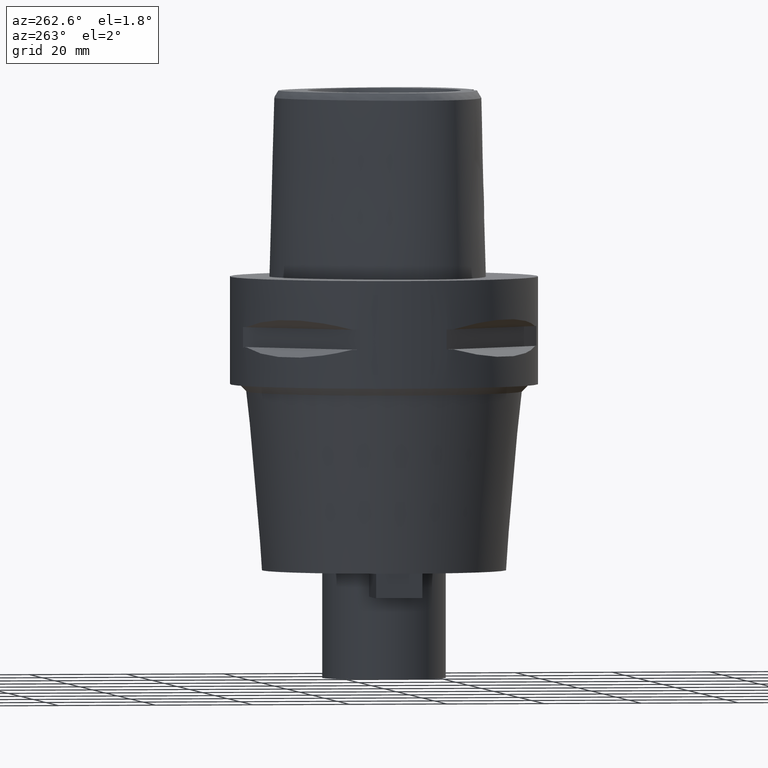
[diagram: clean part render]
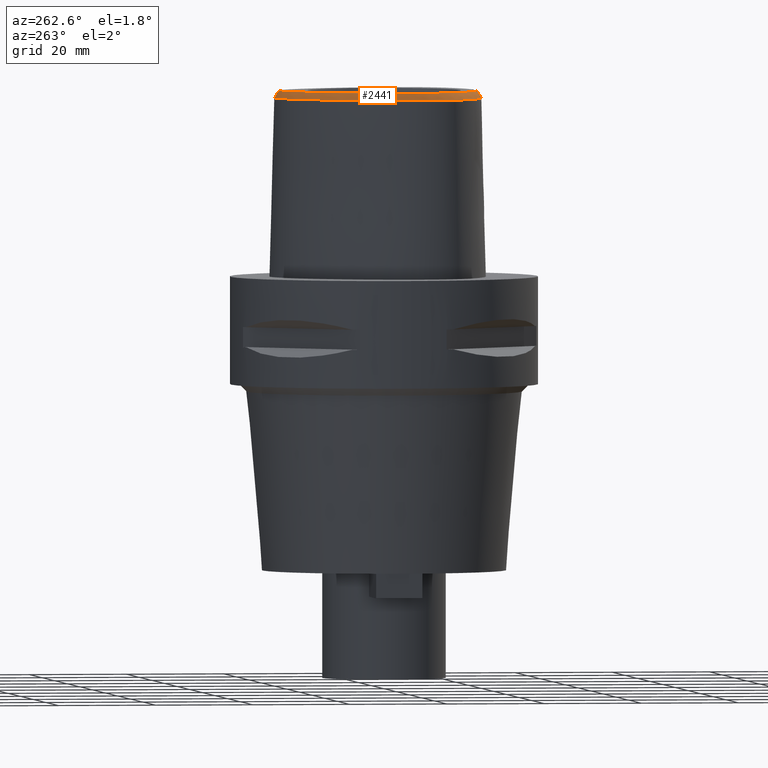
[diagram: same view with one face highlighted and labeled with its STEP entity id]
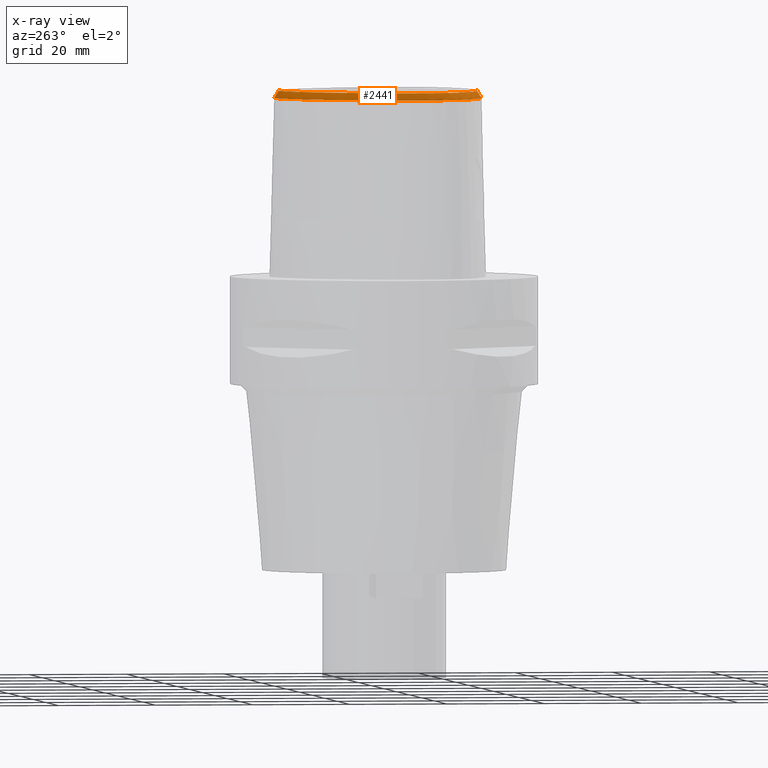
[diagram: x-ray of the same camera — body ghosted, the highlighted face saturated]
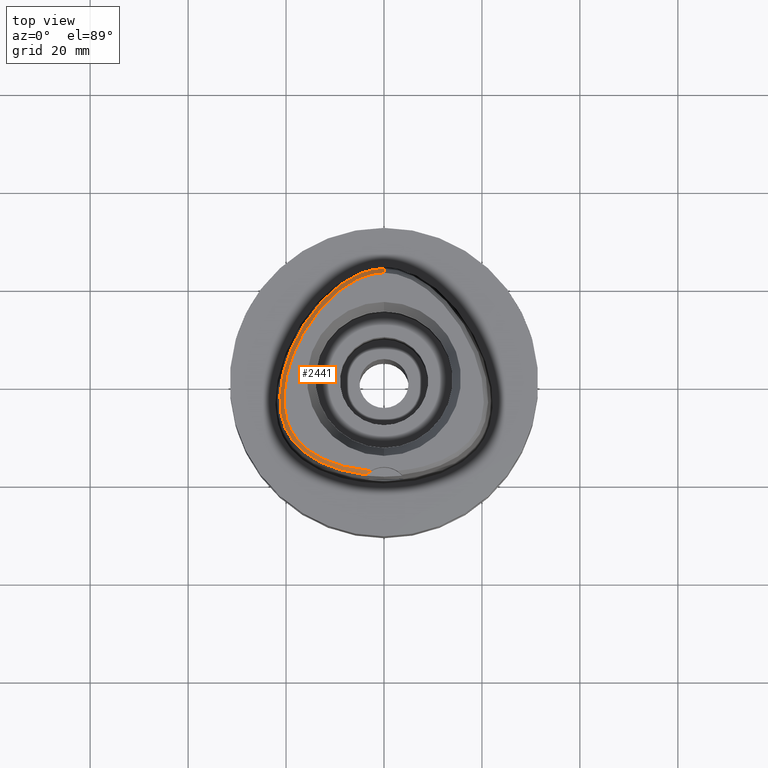
[diagram: same view with one face highlighted and labeled with its STEP entity id]
A machine part, auxiliary view. The second image highlights one B-rep face of the part: STEP entity #2441.
The next image is the same camera in x-ray: the body ghosted, the highlighted face saturated — about 0% of this face is hidden behind the body in this view.
A second angle (top view) of the same face is appended — the face is thin or edge-on in the first view.
In plain terms, the highlighted face is a freeform B-spline surface patch.
Its self-contained STEP definition (entity closure, byte-faithful):
#34=CARTESIAN_POINT('',(-2.682279906005E0,-1.878035848610E1,3.8E1));
#35=CARTESIAN_POINT('',(-3.536583919332E0,-1.871198367295E1,3.8E1));
#36=CARTESIAN_POINT('',(-5.157569823313E0,-1.851707777855E1,3.8E1));
#37=CARTESIAN_POINT('',(-7.379922309266E0,-1.807701230627E1,3.8E1));
#38=CARTESIAN_POINT('',(-9.244743325410E0,-1.756414297180E1,3.8E1));
#39=CARTESIAN_POINT('',(-1.088082047077E1,-1.699291122827E1,3.8E1));
#40=CARTESIAN_POINT('',(-1.236357253434E1,-1.635519436573E1,3.8E1));
#41=CARTESIAN_POINT('',(-1.371376347293E1,-1.565206771696E1,3.8E1));
#42=CARTESIAN_POINT('',(-1.494793850208E1,-1.487894856490E1,3.8E1));
#43=CARTESIAN_POINT('',(-1.605667878127E1,-1.404125445998E1,3.8E1));
#44=CARTESIAN_POINT('',(-1.700225685115E1,-1.317719436755E1,3.8E1));
#45=CARTESIAN_POINT('',(-1.779417715049E1,-1.230019610942E1,3.8E1));
#46=CARTESIAN_POINT('',(-1.844725209020E1,-1.141643366579E1,3.8E1));
#47=CARTESIAN_POINT('',(-1.898422440909E1,-1.051398415405E1,3.8E1));
#48=CARTESIAN_POINT('',(-1.944073234022E1,-9.536082210321E0,3.8E1));
#49=CARTESIAN_POINT('',(-1.982568451380E1,-8.441682967328E0,3.8E1));
#50=CARTESIAN_POINT('',(-2.012494622432E1,-7.229445552468E0,3.8E1));
#51=CARTESIAN_POINT('',(-2.032744519445E1,-5.866086734526E0,3.8E1));
#52=CARTESIAN_POINT('',(-2.040991552703E1,-4.420594201927E0,3.8E1));
#53=CARTESIAN_POINT('',(-2.037387644774E1,-2.923694312187E0,3.8E1));
#54=CARTESIAN_POINT('',(-2.021713479060E1,-1.344726897676E0,3.8E1));
#55=CARTESIAN_POINT('',(-1.993042909867E1,3.267241519360E-1,3.8E1));
#56=CARTESIAN_POINT('',(-1.948811271935E1,2.148543156940E0,3.8E1));
#57=CARTESIAN_POINT('',(-1.883346068326E1,4.204975463693E0,3.8E1));
#58=CARTESIAN_POINT('',(-1.791222891773E1,6.481113687331E0,3.8E1));
#59=CARTESIAN_POINT('',(-1.678598507471E1,8.743789361891E0,3.8E1));
#60=CARTESIAN_POINT('',(-1.548556504651E1,1.092903336665E1,3.8E1));
#61=CARTESIAN_POINT('',(-1.403416607952E1,1.299368338912E1,3.8E1));
#62=CARTESIAN_POINT('',(-1.252298261168E1,1.482314236452E1,3.8E1));
#63=CARTESIAN_POINT('',(-1.110128863395E1,1.630385497934E1,3.8E1));
#64=CARTESIAN_POINT('',(-9.770444384936E0,1.751155273817E1,3.8E1));
#65=CARTESIAN_POINT('',(-8.476461198326E0,1.853286527510E1,3.8E1));
#66=CARTESIAN_POINT('',(-7.192157802658E0,1.940424102648E1,3.8E1));
#67=CARTESIAN_POINT('',(-5.904116937329E0,2.013985433437E1,3.8E1));
#68=CARTESIAN_POINT('',(-4.618287667118E0,2.073660556736E1,3.8E1));
#69=CARTESIAN_POINT('',(-3.367812084204E0,2.118315272942E1,3.8E1));
#70=CARTESIAN_POINT('',(-2.187686313881E0,2.148140095791E1,3.8E1));
#71=CARTESIAN_POINT('',(-1.072731769579E0,2.165074140493E1,3.8E1));
#72=CARTESIAN_POINT('',(-3.525911372496E-1,2.168728795389E1,3.8E1));
#73=CARTESIAN_POINT('',(-3.470663397163E-11,2.168728795390E1,3.8E1));
#191=CARTESIAN_POINT('',(-2.682279906005E0,-1.878035848610E1,3.8E1));
#192=CARTESIAN_POINT('',(-2.798094769254E0,-1.885397798185E1,3.786037908949E1));
#193=CARTESIAN_POINT('',(-3.023539852519E0,-1.901071116962E1,3.756412794551E1));
#194=CARTESIAN_POINT('',(-3.341069052948E0,-1.927246970200E1,3.707333940333E1));
#195=CARTESIAN_POINT('',(-3.541216570951E0,-1.946735519136E1,3.671114030568E1));
#196=CARTESIAN_POINT('',(-3.637738201364E0,-1.956971413237E1,3.652186244848E1));
#201=CARTESIAN_POINT('',(-3.637738201364E0,-1.956971413237E1,3.652186244848E1));
#202=CARTESIAN_POINT('',(-4.504968731616E0,-1.947731369980E1,3.652183627207E1));
#203=CARTESIAN_POINT('',(-6.156325267405E0,-1.923346422320E1,3.652187938982E1));
#204=CARTESIAN_POINT('',(-8.366371755794E0,-1.873183990537E1,3.652185860973E1));
#205=CARTESIAN_POINT('',(-1.023422343346E1,-1.816222485471E1,3.652186545258E1));
#206=CARTESIAN_POINT('',(-1.189612172444E1,-1.752599688669E1,3.652186758400E1));
#207=CARTESIAN_POINT('',(-1.341588970168E1,-1.681192139863E1,3.652186456406E1));
#208=CARTESIAN_POINT('',(-1.480731546571E1,-1.601987578711E1,3.652186732629E1));
#209=CARTESIAN_POINT('',(-1.608072342412E1,-1.514195185422E1,3.652186988530E1));
#210=CARTESIAN_POINT('',(-1.717868936962E1,-1.422340148135E1,3.652186678027E1));
#211=CARTESIAN_POINT('',(-1.810201744462E1,-1.328792824025E1,3.652187100613E1));
#212=CARTESIAN_POINT('',(-1.887221419348E1,-1.233828910208E1,3.652184884316E1));
#213=CARTESIAN_POINT('',(-1.951061536538E1,-1.136914057431E1,3.652186635994E1));
#214=CARTESIAN_POINT('',(-2.004378442551E1,-1.034681647047E1,3.652187100365E1));
#215=CARTESIAN_POINT('',(-2.049450437168E1,-9.223436651925E0,3.652187611895E1));
#216=CARTESIAN_POINT('',(-2.085789041760E1,-7.976759168994E0,3.652186332619E1));
#217=CARTESIAN_POINT('',(-2.112173059091E1,-6.593232465789E0,3.652187092687E1));
#218=CARTESIAN_POINT('',(-2.126721385431E1,-5.057225209254E0,3.652186981023E1));
#219=CARTESIAN_POINT('',(-2.127741955211E1,-3.460589931259E0,3.652186850233E1));
#220=CARTESIAN_POINT('',(-2.115636932539E1,-1.800142298698E0,3.652186279439E1));
#221=CARTESIAN_POINT('',(-2.089814650612E1,-5.624703477405E-2,
3.652187375504E1));
#222=CARTESIAN_POINT('',(-2.048537132804E1,1.814157288504E0,3.652187027068E1));
#223=CARTESIAN_POINT('',(-1.985843634570E1,3.927588481081E0,3.652185957026E1));
#224=CARTESIAN_POINT('',(-1.896399112442E1,6.266058949183E0,3.652185759545E1));
#225=CARTESIAN_POINT('',(-1.783502387357E1,8.640993553138E0,3.652186479863E1));
#226=CARTESIAN_POINT('',(-1.651704740283E1,1.094037798892E1,3.652186262533E1));
#227=CARTESIAN_POINT('',(-1.503736626713E1,1.311703485453E1,3.652187358927E1));
#228=CARTESIAN_POINT('',(-1.346017456183E1,1.508615850975E1,3.652184852958E1));
#229=CARTESIAN_POINT('',(-1.193170856274E1,1.671787481090E1,3.652187370266E1));
#230=CARTESIAN_POINT('',(-1.050789260356E1,1.803453116209E1,3.652186487840E1));
#231=CARTESIAN_POINT('',(-9.122826867027E0,1.914537354046E1,3.652186619301E1));
#232=CARTESIAN_POINT('',(-7.746361555704E0,2.009164218037E1,3.652186845270E1));
#233=CARTESIAN_POINT('',(-6.351989304166E0,2.089568108354E1,3.652186562553E1));
#234=CARTESIAN_POINT('',(-4.958584562289E0,2.154484017337E1,3.652187412291E1));
#235=CARTESIAN_POINT('',(-3.612762905574E0,2.202447997448E1,3.652186354503E1));
#236=CARTESIAN_POINT('',(-2.351486731732E0,2.234235726069E1,3.652187950328E1));
#237=CARTESIAN_POINT('',(-1.143480182885E0,2.252393803805E1,3.652178108804E1));
#238=CARTESIAN_POINT('',(-3.822563635017E-1,2.256201468012E1,3.652186680743E1));
#239=CARTESIAN_POINT('',(-1.574547275019E-11,2.256201468012E1,
3.652186680744E1));
#244=DIRECTION('',(-1.103956888110E-11,-5.092834681090E-1,8.605988316927E-1));
#245=VECTOR('',#244,1.717563559379E0);
#246=CARTESIAN_POINT('',(-1.574547275019E-11,2.256201468012E1,
3.652186680744E1));
#247=LINE('',#246,#245);
#251=CARTESIAN_POINT('',(-3.637738201364E0,-1.956971413237E1,3.652186244848E1));
#1681=CARTESIAN_POINT('',(-2.682279906007E0,-1.878035848610E1,3.8E1));
#1683=VERTEX_POINT('',#1681);
#1686=VERTEX_POINT('',#73);
#1697=VERTEX_POINT('',#251);
#1698=CARTESIAN_POINT('',(-1.574547275019E-11,2.256201468012E1,
3.652186680744E1));
#1699=VERTEX_POINT('',#1698);
#2185=CARTESIAN_POINT('',(5.894902002315E-1,2.157968761462E1,3.815521077326E1));
#2186=CARTESIAN_POINT('',(6.090589532937E-1,2.193194654278E1,3.755900986727E1));
#2187=CARTESIAN_POINT('',(6.286277063560E-1,2.228420547095E1,3.696280896129E1));
#2188=CARTESIAN_POINT('',(6.481964594182E-1,2.263646439911E1,3.636660805530E1));
#2189=CARTESIAN_POINT('',(3.879237197907E-1,2.159010744920E1,3.815521072777E1));
#2190=CARTESIAN_POINT('',(4.010329827747E-1,2.194274091289E1,3.755900999650E1));
#2191=CARTESIAN_POINT('',(4.141422457587E-1,2.229537437658E1,3.696280926523E1));
#2192=CARTESIAN_POINT('',(4.272515087427E-1,2.264800784027E1,3.636660853395E1));
#2193=CARTESIAN_POINT('',(-2.535956093443E-2,2.160141016386E1,
3.815521069641E1));
#2194=CARTESIAN_POINT('',(-2.612716361099E-2,2.195443583936E1,
3.755901008560E1));
#2195=CARTESIAN_POINT('',(-2.689476628754E-2,2.230746151485E1,
3.696280947480E1));
#2196=CARTESIAN_POINT('',(-2.766236896410E-2,2.266048719034E1,
3.636660886400E1));
#2197=CARTESIAN_POINT('',(-6.441401631387E-1,2.158205337625E1,
3.815521075012E1));
#2198=CARTESIAN_POINT('',(-6.662612346280E-1,2.193440735819E1,
3.755900993300E1));
#2199=CARTESIAN_POINT('',(-6.883823061173E-1,2.228676134013E1,
3.696280911588E1));
#2200=CARTESIAN_POINT('',(-7.105033776065E-1,2.263911532207E1,
3.636660829877E1));
#2201=CARTESIAN_POINT('',(-1.312248993365E0,2.151979308603E1,3.815521078301E1));
#2202=CARTESIAN_POINT('',(-1.356137194719E0,2.187009598840E1,3.755900983957E1));
#2203=CARTESIAN_POINT('',(-1.400025396072E0,2.222039889077E1,3.696280889613E1));
#2204=CARTESIAN_POINT('',(-1.443913597426E0,2.257070179313E1,3.636660795269E1));
#2205=CARTESIAN_POINT('',(-2.000038052687E0,2.141248483295E1,3.815521072869E1));
#2206=CARTESIAN_POINT('',(-2.065289575556E0,2.175943838514E1,3.755900999388E1));
#2207=CARTESIAN_POINT('',(-2.130541098426E0,2.210639193733E1,3.696280925908E1));
#2208=CARTESIAN_POINT('',(-2.195792621295E0,2.245334548953E1,3.636660852427E1));
#2209=CARTESIAN_POINT('',(-2.713294916425E0,2.125645823734E1,3.815521067165E1));
#2210=CARTESIAN_POINT('',(-2.799351349356E0,2.159883815104E1,3.755901015596E1));
#2211=CARTESIAN_POINT('',(-2.885407782288E0,2.194121806475E1,3.696280964027E1));
#2212=CARTESIAN_POINT('',(-2.971464215220E0,2.228359797845E1,3.636660912458E1));
#2213=CARTESIAN_POINT('',(-3.453361375673E0,2.104745400490E1,3.815521068396E1));
#2214=CARTESIAN_POINT('',(-3.559593883333E0,2.138411344623E1,3.755901012099E1));
#2215=CARTESIAN_POINT('',(-3.665826390993E0,2.172077288756E1,3.696280955802E1));
#2216=CARTESIAN_POINT('',(-3.772058898653E0,2.205743232888E1,3.636660899505E1));
#2217=CARTESIAN_POINT('',(-4.221836790237E0,2.078072297823E1,3.815521072979E1));
#2218=CARTESIAN_POINT('',(-4.347531013215E0,2.111060300571E1,3.755900999075E1));
#2219=CARTESIAN_POINT('',(-4.473225236193E0,2.144048303320E1,3.696280925171E1));
#2220=CARTESIAN_POINT('',(-4.598919459172E0,2.177036306069E1,3.636660851267E1));
#2221=CARTESIAN_POINT('',(-5.020632521145E0,2.045059402418E1,3.815521068002E1));
#2222=CARTESIAN_POINT('',(-5.165016596797E0,2.077272399792E1,3.755901013218E1));
#2223=CARTESIAN_POINT('',(-5.309400672450E0,2.109485397166E1,3.696280958434E1));
#2224=CARTESIAN_POINT('',(-5.453784748103E0,2.141698394540E1,3.636660903651E1));
#2225=CARTESIAN_POINT('',(-5.851309431826E0,2.005073627031E1,3.815521066676E1));
#2226=CARTESIAN_POINT('',(-6.013540378397E0,2.036424904717E1,3.755901016987E1));
#2227=CARTESIAN_POINT('',(-6.175771324968E0,2.067776182404E1,3.696280967298E1));
#2228=CARTESIAN_POINT('',(-6.338002271539E0,2.099127460091E1,3.636660917609E1));
#2229=CARTESIAN_POINT('',(-6.712773985675E0,1.957537939619E1,3.815521072681E1));
#2230=CARTESIAN_POINT('',(-6.892005148073E0,1.987948501289E1,3.755900999923E1));
#2231=CARTESIAN_POINT('',(-7.071236310471E0,2.018359062958E1,3.696280927165E1));
#2232=CARTESIAN_POINT('',(-7.250467472869E0,2.048769624628E1,3.636660854406E1));
#2233=CARTESIAN_POINT('',(-7.604367668583E0,1.901798459753E1,3.815521072329E1));
#2234=CARTESIAN_POINT('',(-7.799714397087E0,1.931198878966E1,3.755901000922E1));
#2235=CARTESIAN_POINT('',(-7.995061125591E0,1.960599298178E1,3.696280929515E1));
#2236=CARTESIAN_POINT('',(-8.190407854096E0,1.989999717390E1,3.636660858108E1));
#2237=CARTESIAN_POINT('',(-8.523399475360E0,1.837281913654E1,3.815521077734E1));
#2238=CARTESIAN_POINT('',(-8.733979977122E0,1.865610374980E1,3.755900985569E1));
#2239=CARTESIAN_POINT('',(-8.944560478883E0,1.893938836306E1,3.696280893405E1));
#2240=CARTESIAN_POINT('',(-9.155140980645E0,1.922267297633E1,3.636660801240E1));
#2241=CARTESIAN_POINT('',(-9.465773615358E0,1.763477423014E1,3.815521058168E1));
#2242=CARTESIAN_POINT('',(-9.690730349954E0,1.790677468686E1,3.755901041159E1));
#2243=CARTESIAN_POINT('',(-9.915687084551E0,1.817877514359E1,3.696281024151E1));
#2244=CARTESIAN_POINT('',(-1.014064381915E1,1.845077560031E1,3.636661007142E1));
#2245=CARTESIAN_POINT('',(-1.042754860821E1,1.679856762162E1,3.815521034655E1));
#2246=CARTESIAN_POINT('',(-1.066599559060E1,1.705881472802E1,3.755901107966E1));
#2247=CARTESIAN_POINT('',(-1.090444257299E1,1.731906183442E1,3.696281181276E1));
#2248=CARTESIAN_POINT('',(-1.114288955539E1,1.757930894082E1,3.636661254587E1));
#2249=CARTESIAN_POINT('',(-1.140027064986E1,1.586283775180E1,3.815521036522E1));
#2250=CARTESIAN_POINT('',(-1.165137440508E1,1.611088794969E1,3.755901102659E1));
#2251=CARTESIAN_POINT('',(-1.190247816031E1,1.635893814758E1,3.696281168796E1));
#2252=CARTESIAN_POINT('',(-1.215358191554E1,1.660698834546E1,3.636661234934E1));
#2253=CARTESIAN_POINT('',(-1.237271479069E1,1.482998971552E1,3.815521064431E1));
#2254=CARTESIAN_POINT('',(-1.263566332502E1,1.506544107001E1,3.755901023366E1));
#2255=CARTESIAN_POINT('',(-1.289861185935E1,1.530089242451E1,3.696280982301E1));
#2256=CARTESIAN_POINT('',(-1.316156039367E1,1.553634377900E1,3.636660941236E1));
#2257=CARTESIAN_POINT('',(-1.333301613721E1,1.370477398759E1,3.815521077583E1));
#2258=CARTESIAN_POINT('',(-1.360705081058E1,1.392721924555E1,3.755900985994E1));
#2259=CARTESIAN_POINT('',(-1.388108548394E1,1.414966450351E1,3.696280894405E1));
#2260=CARTESIAN_POINT('',(-1.415512015731E1,1.437210976147E1,3.636660802817E1));
#2261=CARTESIAN_POINT('',(-1.426999792685E1,1.249318620079E1,3.815521065885E1));
#2262=CARTESIAN_POINT('',(-1.455434893679E1,1.270227803071E1,3.755901019231E1));
#2263=CARTESIAN_POINT('',(-1.483869994673E1,1.291136986064E1,3.696280972577E1));
#2264=CARTESIAN_POINT('',(-1.512305095667E1,1.312046169056E1,3.636660925922E1));
#2265=CARTESIAN_POINT('',(-1.517040013915E1,1.120631348093E1,3.815521063201E1));
#2266=CARTESIAN_POINT('',(-1.546434916901E1,1.140167906200E1,3.755901026861E1));
#2267=CARTESIAN_POINT('',(-1.575829819886E1,1.159704464307E1,3.696280990522E1));
#2268=CARTESIAN_POINT('',(-1.605224722871E1,1.179241022414E1,3.636660954183E1));
#2269=CARTESIAN_POINT('',(-1.601921859448E1,9.861552908213E0,3.815521072546E1));
#2270=CARTESIAN_POINT('',(-1.632206520721E1,1.004281922655E1,3.755901000308E1));
#2271=CARTESIAN_POINT('',(-1.662491181994E1,1.022408554490E1,3.696280928069E1));
#2272=CARTESIAN_POINT('',(-1.692775843267E1,1.040535186324E1,3.636660855831E1));
#2273=CARTESIAN_POINT('',(-1.680549498969E1,8.474412401839E0,3.815521069050E1));
#2274=CARTESIAN_POINT('',(-1.711657369620E1,8.641156685818E0,3.755901010240E1));
#2275=CARTESIAN_POINT('',(-1.742765240271E1,8.807900969798E0,3.696280951430E1));
#2276=CARTESIAN_POINT('',(-1.773873110922E1,8.974645253777E0,3.636660892620E1));
#2277=CARTESIAN_POINT('',(-1.752132416311E1,7.059241542800E0,3.815521062926E1));
#2278=CARTESIAN_POINT('',(-1.783993665659E1,7.211097019320E0,3.755901027640E1));
#2279=CARTESIAN_POINT('',(-1.815854915007E1,7.362952495840E0,3.696280992355E1));
#2280=CARTESIAN_POINT('',(-1.847716164356E1,7.514807972360E0,3.636660957069E1));
#2281=CARTESIAN_POINT('',(-1.815829602618E1,5.635687776832E0,3.815521069572E1));
#2282=CARTESIAN_POINT('',(-1.848377019470E1,5.772223657744E0,3.755901008756E1));
#2283=CARTESIAN_POINT('',(-1.880924436323E1,5.908759538656E0,3.696280947941E1));
#2284=CARTESIAN_POINT('',(-1.913471853175E1,6.045295419567E0,3.636660887125E1));
#2285=CARTESIAN_POINT('',(-1.871015888552E1,4.224816364290E0,3.815521078566E1));
#2286=CARTESIAN_POINT('',(-1.904181080890E1,4.345583109323E0,3.755900983201E1));
#2287=CARTESIAN_POINT('',(-1.937346273227E1,4.466349854356E0,3.696280887836E1));
#2288=CARTESIAN_POINT('',(-1.970511465564E1,4.587116599390E0,3.636660792472E1));
#2289=CARTESIAN_POINT('',(-1.917547856041E1,2.841363072460E0,3.815521052984E1));
#2290=CARTESIAN_POINT('',(-1.951260975544E1,2.945874673012E0,3.755901055888E1));
#2291=CARTESIAN_POINT('',(-1.984974095047E1,3.050386273563E0,3.696281058791E1));
#2292=CARTESIAN_POINT('',(-2.018687214550E1,3.154897874115E0,3.636661061695E1));
#2293=CARTESIAN_POINT('',(-1.955534010883E1,1.497398881190E0,3.815521032238E1));
#2294=CARTESIAN_POINT('',(-1.989721162144E1,1.585188389371E0,3.755901114829E1));
#2295=CARTESIAN_POINT('',(-2.023908313405E1,1.672977897552E0,3.696281197420E1));
#2296=CARTESIAN_POINT('',(-2.058095464666E1,1.760767405733E0,3.636661280010E1));
#2297=CARTESIAN_POINT('',(-1.985185508843E1,2.058849716430E-1,
3.815521039412E1));
#2298=CARTESIAN_POINT('',(-2.019769879223E1,2.764466177401E-1,
3.755901094450E1));
#2299=CARTESIAN_POINT('',(-2.054354249602E1,3.470082638373E-1,
3.696281149487E1));
#2300=CARTESIAN_POINT('',(-2.088938619982E1,4.175699099344E-1,
3.636661204525E1));
#2301=CARTESIAN_POINT('',(-2.006927377052E1,-1.023451852821E0,
3.815521067864E1));
#2302=CARTESIAN_POINT('',(-2.041827259495E1,-9.706207555382E-1,
3.755901013612E1));
#2303=CARTESIAN_POINT('',(-2.076727141939E1,-9.177896582549E-1,
3.696280959360E1));
#2304=CARTESIAN_POINT('',(-2.111627024383E1,-8.649585609716E-1,
3.636660905108E1));
#2305=CARTESIAN_POINT('',(-2.021353328092E1,-2.186378690058E0,
3.815521076909E1));
#2306=CARTESIAN_POINT('',(-2.056481766783E1,-2.151808375740E0,
3.755900987913E1));
#2307=CARTESIAN_POINT('',(-2.091610205475E1,-2.117238061422E0,
3.696280898917E1));
#2308=CARTESIAN_POINT('',(-2.126738644167E1,-2.082667747104E0,
3.636660809921E1));
#2309=CARTESIAN_POINT('',(-2.029121364496E1,-3.282475869127E0,
3.815521073051E1));
#2310=CARTESIAN_POINT('',(-2.064384480587E1,-3.266607670608E0,
3.755900998874E1));
#2311=CARTESIAN_POINT('',(-2.099647596679E1,-3.250739472089E0,
3.696280924696E1));
#2312=CARTESIAN_POINT('',(-2.134910712770E1,-3.234871273571E0,
3.636660850519E1));
#2313=CARTESIAN_POINT('',(-2.030870989312E1,-4.310559942617E0,
3.815521071129E1));
#2314=CARTESIAN_POINT('',(-2.066168998958E1,-4.313854426025E0,
3.755901004336E1));
#2315=CARTESIAN_POINT('',(-2.101467008605E1,-4.317148909434E0,
3.696280937543E1));
#2316=CARTESIAN_POINT('',(-2.136765018252E1,-4.320443392842E0,
3.636660870750E1));
#2317=CARTESIAN_POINT('',(-2.027228076469E1,-5.272525768043E0,
3.815521063266E1));
#2318=CARTESIAN_POINT('',(-2.062454390632E1,-5.295361747097E0,
3.755901026674E1));
#2319=CARTESIAN_POINT('',(-2.097680704795E1,-5.318197726150E0,
3.696280990082E1));
#2320=CARTESIAN_POINT('',(-2.132907018958E1,-5.341033705204E0,
3.636660953491E1));
#2321=CARTESIAN_POINT('',(-2.018776047667E1,-6.170804378607E0,
3.815521068364E1));
#2322=CARTESIAN_POINT('',(-2.053817835302E1,-6.213508174832E0,
3.755901012189E1));
#2323=CARTESIAN_POINT('',(-2.088859622937E1,-6.256211971057E0,
3.696280956014E1));
#2324=CARTESIAN_POINT('',(-2.123901410571E1,-6.298915767282E0,
3.636660899838E1));
#2325=CARTESIAN_POINT('',(-2.006046653077E1,-7.007868231670E0,
3.815521074473E1));
#2326=CARTESIAN_POINT('',(-2.040784631453E1,-7.070708585457E0,
3.755900994833E1));
#2327=CARTESIAN_POINT('',(-2.075522609829E1,-7.133548939245E0,
3.696280915192E1));
#2328=CARTESIAN_POINT('',(-2.110260588205E1,-7.196389293032E0,
3.636660835551E1));
#2329=CARTESIAN_POINT('',(-1.989487507067E1,-7.788258233921E0,
3.815521073949E1));
#2330=CARTESIAN_POINT('',(-2.023797346631E1,-7.871385077942E0,
3.755900996322E1));
#2331=CARTESIAN_POINT('',(-2.058107186195E1,-7.954511921964E0,
3.696280918694E1));
#2332=CARTESIAN_POINT('',(-2.092417025759E1,-8.037638765986E0,
3.636660841067E1));
#2333=CARTESIAN_POINT('',(-1.969475206476E1,-8.516211235864E0,
3.815521072967E1));
#2334=CARTESIAN_POINT('',(-2.003228146772E1,-8.619677781415E0,
3.755900999112E1));
#2335=CARTESIAN_POINT('',(-2.036981087069E1,-8.723144326967E0,
3.696280925257E1));
#2336=CARTESIAN_POINT('',(-2.070734027365E1,-8.826610872519E0,
3.636660851402E1));
#2337=CARTESIAN_POINT('',(-1.946312294782E1,-9.195953832792E0,
3.815521068362E1));
#2338=CARTESIAN_POINT('',(-1.979376207942E1,-9.319702866512E0,
3.755901012197E1));
#2339=CARTESIAN_POINT('',(-2.012440121102E1,-9.443451900233E0,
3.696280956032E1));
#2340=CARTESIAN_POINT('',(-2.045504034261E1,-9.567200933954E0,
3.636660899867E1));
#2341=CARTESIAN_POINT('',(-1.920198185738E1,-9.832238280414E0,
3.815521070958E1));
#2342=CARTESIAN_POINT('',(-1.952439665487E1,-9.976070102725E0,
3.755901004817E1));
#2343=CARTESIAN_POINT('',(-1.984681145236E1,-1.011990192504E1,
3.696280938676E1));
#2344=CARTESIAN_POINT('',(-2.016922624985E1,-1.026373374735E1,
3.636660872535E1));
#2345=CARTESIAN_POINT('',(-1.891375846099E1,-1.042709887605E1,
3.815521075461E1));
#2346=CARTESIAN_POINT('',(-1.922662828381E1,-1.059067614993E1,
3.755900992027E1));
#2347=CARTESIAN_POINT('',(-1.953949810664E1,-1.075425342381E1,
3.696280908593E1));
#2348=CARTESIAN_POINT('',(-1.985236792947E1,-1.091783069769E1,
3.636660825159E1));
#2349=CARTESIAN_POINT('',(-1.859749299337E1,-1.098795979122E1,
3.815521070868E1));
#2350=CARTESIAN_POINT('',(-1.889938880539E1,-1.117100316578E1,
3.755901005076E1));
#2351=CARTESIAN_POINT('',(-1.920128461742E1,-1.135404654034E1,
3.696280939285E1));
#2352=CARTESIAN_POINT('',(-1.950318042945E1,-1.153708991489E1,
3.636660873494E1));
#2353=CARTESIAN_POINT('',(-1.824201440243E1,-1.153545944108E1,
3.815521075453E1));
#2354=CARTESIAN_POINT('',(-1.853190363386E1,-1.173696482784E1,
3.755900992047E1));
#2355=CARTESIAN_POINT('',(-1.882179286529E1,-1.193847021459E1,
3.696280908642E1));
#2356=CARTESIAN_POINT('',(-1.911168209673E1,-1.213997560135E1,
3.636660825237E1));
#2357=CARTESIAN_POINT('',(-1.783796574491E1,-1.208077083401E1,
3.815521066951E1));
#2358=CARTESIAN_POINT('',(-1.811487791596E1,-1.229976128993E1,
3.755901016205E1));
#2359=CARTESIAN_POINT('',(-1.839179008700E1,-1.251875174585E1,
3.696280965459E1));
#2360=CARTESIAN_POINT('',(-1.866870225804E1,-1.273774220177E1,
3.636660914713E1));
#2361=CARTESIAN_POINT('',(-1.738271562870E1,-1.262236018178E1,
3.815521072190E1));
#2362=CARTESIAN_POINT('',(-1.764576881444E1,-1.285780859966E1,
3.755901001321E1));
#2363=CARTESIAN_POINT('',(-1.790882200018E1,-1.309325701755E1,
3.696280930452E1));
#2364=CARTESIAN_POINT('',(-1.817187518592E1,-1.332870543544E1,
3.636660859583E1));
#2365=CARTESIAN_POINT('',(-1.687170360412E1,-1.316063878384E1,
3.815521073584E1));
#2366=CARTESIAN_POINT('',(-1.712014553108E1,-1.341144708038E1,
3.755900997358E1));
#2367=CARTESIAN_POINT('',(-1.736858745805E1,-1.366225537691E1,
3.696280921131E1));
#2368=CARTESIAN_POINT('',(-1.761702938501E1,-1.391306367345E1,
3.636660844905E1));
#2369=CARTESIAN_POINT('',(-1.629961527575E1,-1.369558823785E1,
3.815521074557E1));
#2370=CARTESIAN_POINT('',(-1.653281158468E1,-1.396062173094E1,
3.755900994596E1));
#2371=CARTESIAN_POINT('',(-1.676600789361E1,-1.422565522403E1,
3.696280914636E1));
#2372=CARTESIAN_POINT('',(-1.699920420253E1,-1.449068871713E1,
3.636660834675E1));
#2373=CARTESIAN_POINT('',(-1.566128647523E1,-1.422602996027E1,
3.815521071373E1));
#2374=CARTESIAN_POINT('',(-1.587871050691E1,-1.450413935895E1,
3.755901003637E1));
#2375=CARTESIAN_POINT('',(-1.609613453859E1,-1.478224875763E1,
3.696280935901E1));
#2376=CARTESIAN_POINT('',(-1.631355857027E1,-1.506035815631E1,
3.636660868165E1));
#2377=CARTESIAN_POINT('',(-1.495056397432E1,-1.475067837486E1,
3.815521063533E1));
#2378=CARTESIAN_POINT('',(-1.515181372933E1,-1.504069744673E1,
3.755901025917E1));
#2379=CARTESIAN_POINT('',(-1.535306348433E1,-1.533071651861E1,
3.696280988302E1));
#2380=CARTESIAN_POINT('',(-1.555431323933E1,-1.562073559048E1,
3.636660950687E1));
#2381=CARTESIAN_POINT('',(-1.416191459708E1,-1.526688830949E1,
3.815521068044E1));
#2382=CARTESIAN_POINT('',(-1.434668337373E1,-1.556766727320E1,
3.755901013098E1));
#2383=CARTESIAN_POINT('',(-1.453145215037E1,-1.586844623691E1,
3.696280958153E1));
#2384=CARTESIAN_POINT('',(-1.471622092702E1,-1.616922520063E1,
3.636660903208E1));
#2385=CARTESIAN_POINT('',(-1.329082903058E1,-1.577067093470E1,
3.815521073344E1));
#2386=CARTESIAN_POINT('',(-1.345887836868E1,-1.608109273301E1,
3.755900998040E1));
#2387=CARTESIAN_POINT('',(-1.362692770677E1,-1.639151453131E1,
3.696280922736E1));
#2388=CARTESIAN_POINT('',(-1.379497704487E1,-1.670193632962E1,
3.636660847432E1));
#2389=CARTESIAN_POINT('',(-1.233196195631E1,-1.625800809637E1,
3.815521074481E1));
#2390=CARTESIAN_POINT('',(-1.248317049674E1,-1.657696455988E1,
3.755900994810E1));
#2391=CARTESIAN_POINT('',(-1.263437903718E1,-1.689592102339E1,
3.696280915140E1));
#2392=CARTESIAN_POINT('',(-1.278558757761E1,-1.721487748691E1,
3.636660835469E1));
#2393=CARTESIAN_POINT('',(-1.128295200192E1,-1.672298678682E1,
3.815521075142E1));
#2394=CARTESIAN_POINT('',(-1.141722936462E1,-1.704942560858E1,
3.755900992929E1));
#2395=CARTESIAN_POINT('',(-1.155150672732E1,-1.737586443035E1,
3.696280910716E1));
#2396=CARTESIAN_POINT('',(-1.168578409002E1,-1.770230325211E1,
3.636660828503E1));
#2397=CARTESIAN_POINT('',(-1.014081473831E1,-1.715977828612E1,
3.815521048102E1));
#2398=CARTESIAN_POINT('',(-1.025814907430E1,-1.749267594805E1,
3.755901069759E1));
#2399=CARTESIAN_POINT('',(-1.037548341029E1,-1.782557360998E1,
3.696281091416E1));
#2400=CARTESIAN_POINT('',(-1.049281774629E1,-1.815847127191E1,
3.636661113072E1));
#2401=CARTESIAN_POINT('',(-8.903954057103E0,-1.756191165170E1,
3.815521032992E1));
#2402=CARTESIAN_POINT('',(-9.004371476087E0,-1.790029109621E1,
3.755901112690E1));
#2403=CARTESIAN_POINT('',(-9.104788895071E0,-1.823867054072E1,
3.696281192388E1));
#2404=CARTESIAN_POINT('',(-9.205206314056E0,-1.857704998523E1,
3.636661272085E1));
#2405=CARTESIAN_POINT('',(-7.577621023716E0,-1.792083086102E1,
3.815521044542E1));
#2406=CARTESIAN_POINT('',(-7.661165886879E0,-1.826376120977E1,
3.755901079876E1));
#2407=CARTESIAN_POINT('',(-7.744710750042E0,-1.860669155852E1,
3.696281115210E1));
#2408=CARTESIAN_POINT('',(-7.828255613205E0,-1.894962190726E1,
3.636661150545E1));
#2409=CARTESIAN_POINT('',(-6.171005636862E0,-1.822807696410E1,
3.815521074407E1));
#2410=CARTESIAN_POINT('',(-6.237730021366E0,-1.857466927698E1,
3.755900995018E1));
#2411=CARTESIAN_POINT('',(-6.304454405869E0,-1.892126158987E1,
3.696280915628E1));
#2412=CARTESIAN_POINT('',(-6.371178790372E0,-1.926785390275E1,
3.636660836238E1));
#2413=CARTESIAN_POINT('',(-4.693991644289E0,-1.847625774998E1,
3.815521072425E1));
#2414=CARTESIAN_POINT('',(-4.743938368451E0,-1.882565937831E1,
3.755901000653E1));
#2415=CARTESIAN_POINT('',(-4.793885092613E0,-1.917506100664E1,
3.696280928882E1));
#2416=CARTESIAN_POINT('',(-4.843831816774E0,-1.952446263497E1,
3.636660857110E1));
#2417=CARTESIAN_POINT('',(-3.513237075943E0,-1.861675804747E1,
3.815521064288E1));
#2418=CARTESIAN_POINT('',(-3.550342489149E0,-1.896768202797E1,
3.755901023769E1));
#2419=CARTESIAN_POINT('',(-3.587447902354E0,-1.931860600847E1,
3.696280983250E1));
#2420=CARTESIAN_POINT('',(-3.624553315559E0,-1.966952998898E1,
3.636660942731E1));
#2421=CARTESIAN_POINT('',(-2.631423902845E0,-1.869376300731E1,
3.815521063224E1));
#2422=CARTESIAN_POINT('',(-2.659108121395E0,-1.904550962204E1,
3.755901026792E1));
#2423=CARTESIAN_POINT('',(-2.686792339946E0,-1.939725623678E1,
3.696280990359E1));
#2424=CARTESIAN_POINT('',(-2.714476558497E0,-1.974900285151E1,
3.636660953926E1));
#2425=CARTESIAN_POINT('',(-2.267525196105E0,-1.871952209239E1,
3.815521063714E1));
#2426=CARTESIAN_POINT('',(-2.291351735841E0,-1.907154164442E1,
3.755901025401E1));
#2427=CARTESIAN_POINT('',(-2.315178275576E0,-1.942356119646E1,
3.696280987087E1));
#2428=CARTESIAN_POINT('',(-2.339004815312E0,-1.977558074850E1,
3.636660948774E1));
#2429=CARTESIAN_POINT('',(-2.062968654787E0,-1.873211023653E1,
3.815521064221E1));
#2430=CARTESIAN_POINT('',(-2.084633679557E0,-1.908426278098E1,
3.755901023963E1));
#2431=CARTESIAN_POINT('',(-2.106298704327E0,-1.943641532544E1,
3.696280983704E1));
#2432=CARTESIAN_POINT('',(-2.127963729096E0,-1.978856786990E1,
3.636660943446E1));
#2433=B_SPLINE_SURFACE_WITH_KNOTS('',3,3,((#2185,#2186,#2187,#2188),(#2189,
#2190,#2191,#2192),(#2193,#2194,#2195,#2196),(#2197,#2198,#2199,#2200),(#2201,
#2202,#2203,#2204),(#2205,#2206,#2207,#2208),(#2209,#2210,#2211,#2212),(#2213,
#2214,#2215,#2216),(#2217,#2218,#2219,#2220),(#2221,#2222,#2223,#2224),(#2225,
#2226,#2227,#2228),(#2229,#2230,#2231,#2232),(#2233,#2234,#2235,#2236),(#2237,
#2238,#2239,#2240),(#2241,#2242,#2243,#2244),(#2245,#2246,#2247,#2248),(#2249,
#2250,#2251,#2252),(#2253,#2254,#2255,#2256),(#2257,#2258,#2259,#2260),(#2261,
#2262,#2263,#2264),(#2265,#2266,#2267,#2268),(#2269,#2270,#2271,#2272),(#2273,
#2274,#2275,#2276),(#2277,#2278,#2279,#2280),(#2281,#2282,#2283,#2284),(#2285,
#2286,#2287,#2288),(#2289,#2290,#2291,#2292),(#2293,#2294,#2295,#2296),(#2297,
#2298,#2299,#2300),(#2301,#2302,#2303,#2304),(#2305,#2306,#2307,#2308),(#2309,
#2310,#2311,#2312),(#2313,#2314,#2315,#2316),(#2317,#2318,#2319,#2320),(#2321,
#2322,#2323,#2324),(#2325,#2326,#2327,#2328),(#2329,#2330,#2331,#2332),(#2333,
#2334,#2335,#2336),(#2337,#2338,#2339,#2340),(#2341,#2342,#2343,#2344),(#2345,
#2346,#2347,#2348),(#2349,#2350,#2351,#2352),(#2353,#2354,#2355,#2356),(#2357,
#2358,#2359,#2360),(#2361,#2362,#2363,#2364),(#2365,#2366,#2367,#2368),(#2369,
#2370,#2371,#2372),(#2373,#2374,#2375,#2376),(#2377,#2378,#2379,#2380),(#2381,
#2382,#2383,#2384),(#2385,#2386,#2387,#2388),(#2389,#2390,#2391,#2392),(#2393,
#2394,#2395,#2396),(#2397,#2398,#2399,#2400),(#2401,#2402,#2403,#2404),(#2405,
#2406,#2407,#2408),(#2409,#2410,#2411,#2412),(#2413,#2414,#2415,#2416),(#2417,
#2418,#2419,#2420),(#2421,#2422,#2423,#2424),(#2425,#2426,#2427,#2428),(#2429,
#2430,#2431,#2432)),.UNSPECIFIED.,.F.,.F.,.F.,(4,1,1,1,1,1,1,1,1,1,1,1,1,1,1,1,
1,1,1,1,1,1,1,1,1,1,1,1,1,1,1,1,1,1,1,1,1,1,1,1,1,1,1,1,1,1,1,1,1,1,1,1,1,1,1,1,
1,1,1,4),(4,4),(-1.585043674195E-2,0.E0,1.776034072166E-2,3.552068144392E-2,
5.328102216617E-2,7.104136288843E-2,8.880170361069E-2,1.065620443330E-1,
1.243223850552E-1,1.420827257775E-1,1.598430664997E-1,1.776034072219E-1,
1.953637479442E-1,2.131240886664E-1,2.308844293888E-1,2.486447701110E-1,
2.664051108333E-1,2.841654515555E-1,3.019257922778E-1,3.19686133E-1,
3.374464737223E-1,3.552068144445E-1,3.729671551668E-1,3.907274958891E-1,
4.084878366113E-1,4.262481773336E-1,4.440085180558E-1,4.617688587781E-1,
4.795291995003E-1,4.972895402226E-1,5.150498809448E-1,5.328102216671E-1,
5.505705623894E-1,5.683309031116E-1,5.860912438339E-1,6.038515845561E-1,
6.216119252784E-1,6.393722660006E-1,6.571326067229E-1,6.748929474452E-1,
6.926532881674E-1,7.104136288897E-1,7.281739696119E-1,7.459343103342E-1,
7.636946510564E-1,7.814549917787E-1,7.992153325009E-1,8.169756732232E-1,
8.347360139455E-1,8.524963546678E-1,8.702566953900E-1,8.880170361122E-1,
9.057773768345E-1,9.235377175567E-1,9.412980582790E-1,9.590583990012E-1,
9.768187397236E-1,9.945790804458E-1,1.E0,1.006922200500E0),(-8.173462869336E-2,
1.081760542143E0),.UNSPECIFIED.);
#2434=ORIENTED_EDGE('',*,*,#1922,.T.);
#2436=ORIENTED_EDGE('',*,*,#2435,.T.);
#2437=ORIENTED_EDGE('',*,*,#2178,.T.);
#2438=ORIENTED_EDGE('',*,*,#1892,.F.);
#2439=EDGE_LOOP('',(#2434,#2436,#2437,#2438));
#2440=FACE_OUTER_BOUND('',#2439,.F.);
#74=B_SPLINE_CURVE_WITH_KNOTS('',3,(#34,#35,#36,#37,#38,#39,#40,#41,#42,#43,#44,
#45,#46,#47,#48,#49,#50,#51,#52,#53,#54,#55,#56,#57,#58,#59,#60,#61,#62,#63,#64,
#65,#66,#67,#68,#69,#70,#71,#72,#73),.UNSPECIFIED.,.F.,.F.,(4,1,1,1,1,1,1,1,1,1,
1,1,1,1,1,1,1,1,1,1,1,1,1,1,1,1,1,1,1,1,1,1,1,1,1,1,1,4),(0.E0,
2.702702702703E-2,5.405405405405E-2,8.108108108108E-2,1.081081081081E-1,
1.351351351351E-1,1.621621621622E-1,1.891891891892E-1,2.162162162162E-1,
2.432432432432E-1,2.702702702703E-1,2.972972972973E-1,3.243243243243E-1,
3.513513513514E-1,3.783783783784E-1,4.054054054054E-1,4.324324324324E-1,
4.594594594595E-1,4.864864864865E-1,5.135135135135E-1,5.405405405405E-1,
5.675675675676E-1,5.945945945946E-1,6.216216216216E-1,6.486486486486E-1,
6.756756756757E-1,7.027027027027E-1,7.297297297297E-1,7.567567567568E-1,
7.837837837838E-1,8.108108108108E-1,8.378378378378E-1,8.648648648649E-1,
8.918918918919E-1,9.189189189189E-1,9.459459459459E-1,9.729729729730E-1,1.E0),
.UNSPECIFIED.);
#197=B_SPLINE_CURVE_WITH_KNOTS('',3,(#191,#192,#193,#194,#195,#196),
.UNSPECIFIED.,.F.,.F.,(4,1,1,4),(0.E0,3.333333333333E-1,6.666666666667E-1,1.E0),
.UNSPECIFIED.);
#240=B_SPLINE_CURVE_WITH_KNOTS('',3,(#201,#202,#203,#204,#205,#206,#207,#208,
#209,#210,#211,#212,#213,#214,#215,#216,#217,#218,#219,#220,#221,#222,#223,#224,
#225,#226,#227,#228,#229,#230,#231,#232,#233,#234,#235,#236,#237,#238,#239),
.UNSPECIFIED.,.F.,.F.,(4,1,1,1,1,1,1,1,1,1,1,1,1,1,1,1,1,1,1,1,1,1,1,1,1,1,1,1,
1,1,1,1,1,1,1,1,4),(0.E0,2.777777777778E-2,5.555555555556E-2,8.333333333333E-2,
1.111111111111E-1,1.388888888889E-1,1.666666666667E-1,1.944444444444E-1,
2.222222222222E-1,2.5E-1,2.777777777778E-1,3.055555555556E-1,3.333333333333E-1,
3.611111111111E-1,3.888888888889E-1,4.166666666667E-1,4.444444444444E-1,
4.722222222222E-1,5.E-1,5.277777777778E-1,5.555555555556E-1,5.833333333333E-1,
6.111111111111E-1,6.388888888889E-1,6.666666666667E-1,6.944444444444E-1,
7.222222222222E-1,7.5E-1,7.777777777778E-1,8.055555555556E-1,8.333333333333E-1,
8.611111111111E-1,8.888888888889E-1,9.166666666667E-1,9.444444444444E-1,
9.722222222222E-1,1.E0),.UNSPECIFIED.);
#1892=EDGE_CURVE('',#1683,#1686,#74,.T.);
#1922=EDGE_CURVE('',#1683,#1697,#197,.T.);
#2178=EDGE_CURVE('',#1699,#1686,#247,.T.);
#2435=EDGE_CURVE('',#1697,#1699,#240,.T.);
#2441=ADVANCED_FACE('',(#2440),#2433,.F.);